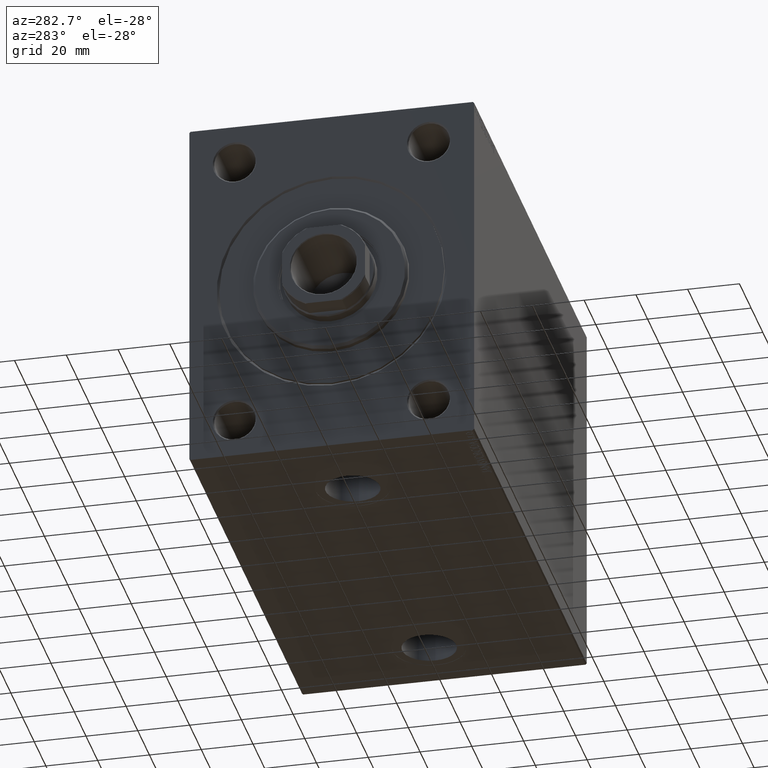
[diagram: clean part render]
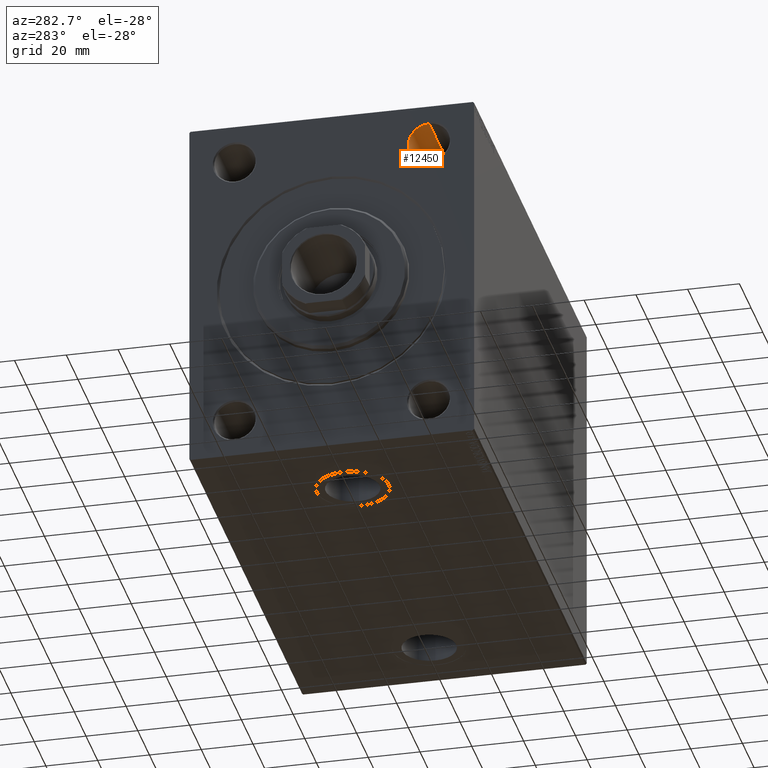
[diagram: same view with one face highlighted and labeled with its STEP entity id]
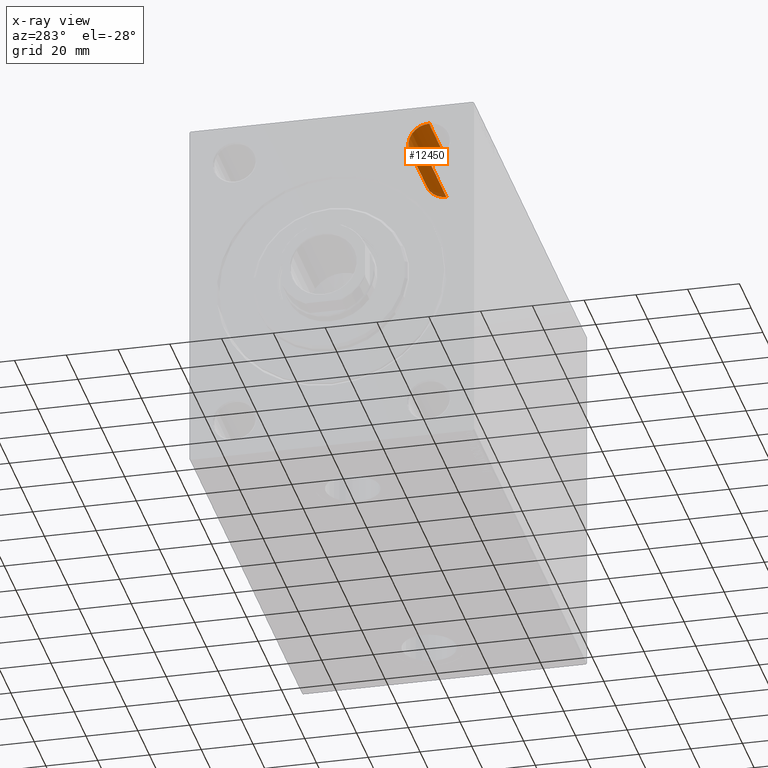
[diagram: x-ray of the same camera — body ghosted, the highlighted face saturated]
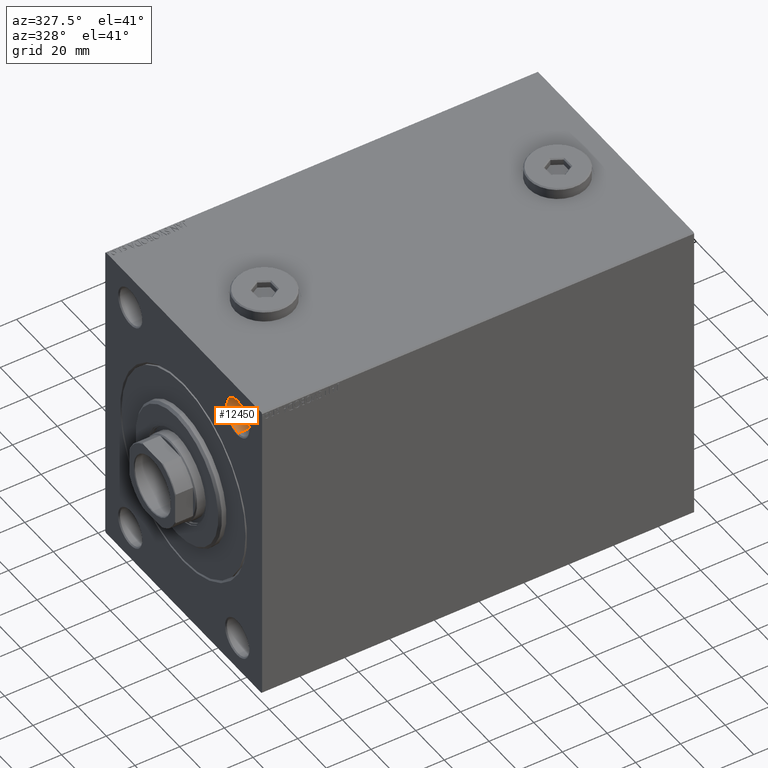
[diagram: same view with one face highlighted and labeled with its STEP entity id]
A machine part, auxiliary view. The second image highlights one B-rep face of the part: STEP entity #12450.
The next image is the same camera in x-ray: the body ghosted, the highlighted face saturated — about 8% of this face is hidden behind the body in this view.
A second angle (auxiliary view) of the same face is appended — the face is thin or edge-on in the first view.
In plain terms, the highlighted cylindrical surface (edge-blend (fillet) strip) has radius 8 mm, axis along (-1, -0, -0).
Its self-contained STEP definition (entity closure, byte-faithful):
#351 = ORIENTED_EDGE ( 'NONE', *, *, #10455, .F. ) ;
#472 = DIRECTION ( 'NONE',  ( -1.000000000000000000, -0.000000000000000000, -0.000000000000000000 ) ) ;
#1535 = CARTESIAN_POINT ( 'NONE',  ( 30.00000000000000000, -37.49999999999999289, 63.00000000000000000 ) ) ;
#4947 = CIRCLE ( 'NONE', #25609, 7.999999999999992895 ) ;
#5458 = DIRECTION ( 'NONE',  ( -1.000000000000000000, -0.000000000000000000, -0.000000000000000000 ) ) ;
#5861 = CARTESIAN_POINT ( 'NONE',  ( 30.00000000000000000, -37.49999999999999289, 47.00000000000001421 ) ) ;
#5911 = FACE_OUTER_BOUND ( 'NONE', #38952, .T. ) ;
#8935 = CYLINDRICAL_SURFACE ( 'NONE', #26579, 7.999999999999992895 ) ;
#9335 = ORIENTED_EDGE ( 'NONE', *, *, #38000, .T. ) ;
#9956 = CARTESIAN_POINT ( 'NONE',  ( 0.5000000000000125455, -37.49999999999999289, 47.00000000000001421 ) ) ;
#10455 = EDGE_CURVE ( 'NONE', #12929, #25530, #28001, .T. ) ;
#11441 = EDGE_CURVE ( 'NONE', #26026, #25530, #41387, .T. ) ;
#12165 = DIRECTION ( 'NONE',  ( 0.000000000000000000, 0.000000000000000000, 1.000000000000000000 ) ) ;
#12450 = ADVANCED_FACE ( 'NONE', ( #5911 ), #8935, .F. ) ;
#12929 = VERTEX_POINT ( 'NONE', #5861 ) ;
#13002 = ORIENTED_EDGE ( 'NONE', *, *, #11441, .T. ) ;
#13266 = CARTESIAN_POINT ( 'NONE',  ( 0.5000000000000125455, -37.49999999999999289, 63.00000000000000000 ) ) ;
#14940 = CARTESIAN_POINT ( 'NONE',  ( 0.5000000000000125455, -37.49999999999999289, 55.00000000000000711 ) ) ;
#19746 = VECTOR ( 'NONE', #39754, 1000.000000000000000 ) ;
#20010 = CARTESIAN_POINT ( 'NONE',  ( 0.000000000000000000, -37.49999999999999289, 55.00000000000000711 ) ) ;
#24164 = VERTEX_POINT ( 'NONE', #1535 ) ;
#25530 = VERTEX_POINT ( 'NONE', #9956 ) ;
#25609 = AXIS2_PLACEMENT_3D ( 'NONE', #37885, #41351, #27498 ) ;
#25676 = CARTESIAN_POINT ( 'NONE',  ( 0.000000000000000000, -37.49999999999999289, 63.00000000000000000 ) ) ;
#26026 = VERTEX_POINT ( 'NONE', #13266 ) ;
#26579 = AXIS2_PLACEMENT_3D ( 'NONE', #20010, #5458, #12165 ) ;
#27498 = DIRECTION ( 'NONE',  ( 0.000000000000000000, 0.000000000000000000, 1.000000000000000000 ) ) ;
#28001 = LINE ( 'NONE', #35850, #30298 ) ;
#29518 = DIRECTION ( 'NONE',  ( -1.000000000000000000, 0.000000000000000000, 0.000000000000000000 ) ) ;
#30298 = VECTOR ( 'NONE', #472, 1000.000000000000000 ) ;
#35518 = AXIS2_PLACEMENT_3D ( 'NONE', #14940, #29518, #43599 ) ;
#35850 = CARTESIAN_POINT ( 'NONE',  ( 0.000000000000000000, -37.49999999999999289, 47.00000000000001421 ) ) ;
#36077 = LINE ( 'NONE', #25676, #19746 ) ;
#37885 = CARTESIAN_POINT ( 'NONE',  ( 30.00000000000000000, -37.49999999999999289, 55.00000000000000711 ) ) ;
#38000 = EDGE_CURVE ( 'NONE', #24164, #26026, #36077, .T. ) ;
#38952 = EDGE_LOOP ( 'NONE', ( #351, #42601, #9335, #13002 ) ) ;
#39712 = EDGE_CURVE ( 'NONE', #24164, #12929, #4947, .T. ) ;
#39754 = DIRECTION ( 'NONE',  ( -1.000000000000000000, -0.000000000000000000, -0.000000000000000000 ) ) ;
#41351 = DIRECTION ( 'NONE',  ( -1.000000000000000000, -0.000000000000000000, -0.000000000000000000 ) ) ;
#41387 = CIRCLE ( 'NONE', #35518, 7.999999999999992895 ) ;
#42601 = ORIENTED_EDGE ( 'NONE', *, *, #39712, .F. ) ;
#43599 = DIRECTION ( 'NONE',  ( 0.000000000000000000, 0.000000000000000000, -1.000000000000000000 ) ) ;